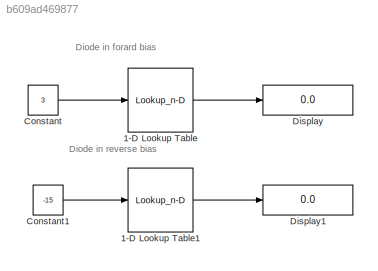
MODEL slx_b609ad469877
KIND model
CONFIG AbsTol = auto
CONFIG EnableMultiTasking = off
CONFIG FixedStep = 0.01
CONFIG MaxStep = auto
CONFIG MinStep = auto
CONFIG RelTol = 1e-3
CONFIG SampleTimeConstraint = Unconstrained
CONFIG SolverName = FixedStepAuto
CONFIG StartTime = 0.0
CONFIG StopTime = 9
BLOCK [Lookup_n-D] 1-D Lookup Table
  BreakpointsForDimension1 = [0 0.2 0.4 0.8 1.2 1.6 1.8 2.0 2.2 2.4]
  BreakpointsForDimension10FirstPoint = -0.9360968731195527
  InputPortMap = u0
  InternalRulePriority = Speed
  NumberOfTableDimensions = 1
  Ports = [1, 1]
  RndMeth = Simplest
  Table = [ 0 0 0.5 2 5 10 15 20 25 30]
BLOCK [Lookup_n-D] 1-D Lookup Table1
  BreakpointsForDimension1 = [-25 -23 -21 -19 -17 -15 -11 -9 -7 -5 0]
  InputPortMap = u0
  InternalRulePriority = Speed
  NumberOfTableDimensions = 1
  Ports = [1, 1]
  RndMeth = Simplest
  Table = [25 15 13 11 9 7 4 3 2 1 0]
BLOCK [Constant] Constant
  Value = 3
BLOCK [Constant] Constant1
  Value = -15
BLOCK [Display] Display
  Decimation = 1
  Ports = [1]
BLOCK [Display] Display1
  Decimation = 1
  Ports = [1]
ANNOTATION (root): Diode in forard bias
ANNOTATION (root): Diode in reverse bias
LINE 1-D Lookup Table1:1 -> Display1:1
LINE 1-D Lookup Table:1 -> Display:1
LINE Constant1:1 -> 1-D Lookup Table1:1
LINE Constant:1 -> 1-D Lookup Table:1
